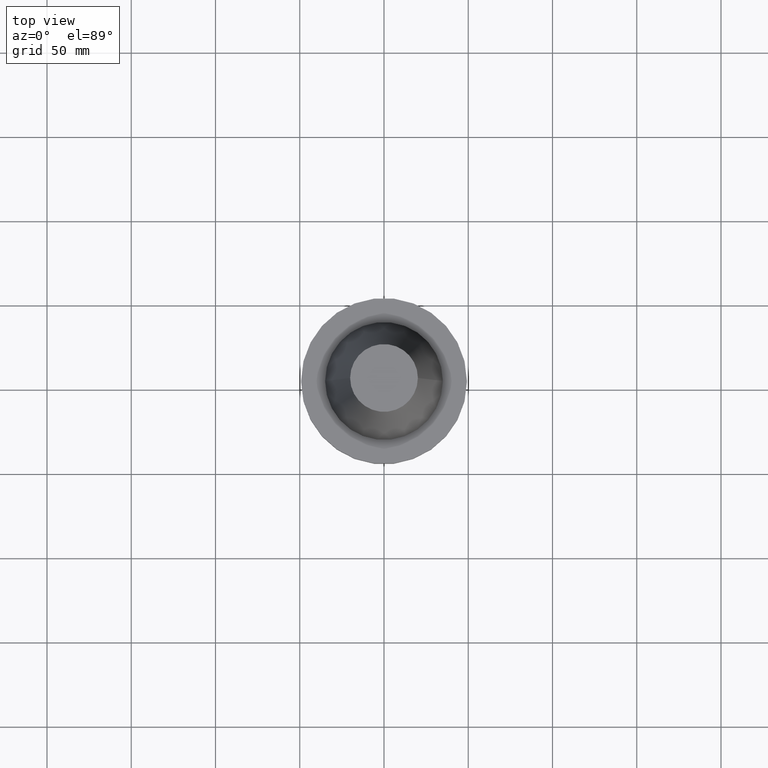
[diagram: clean part render]
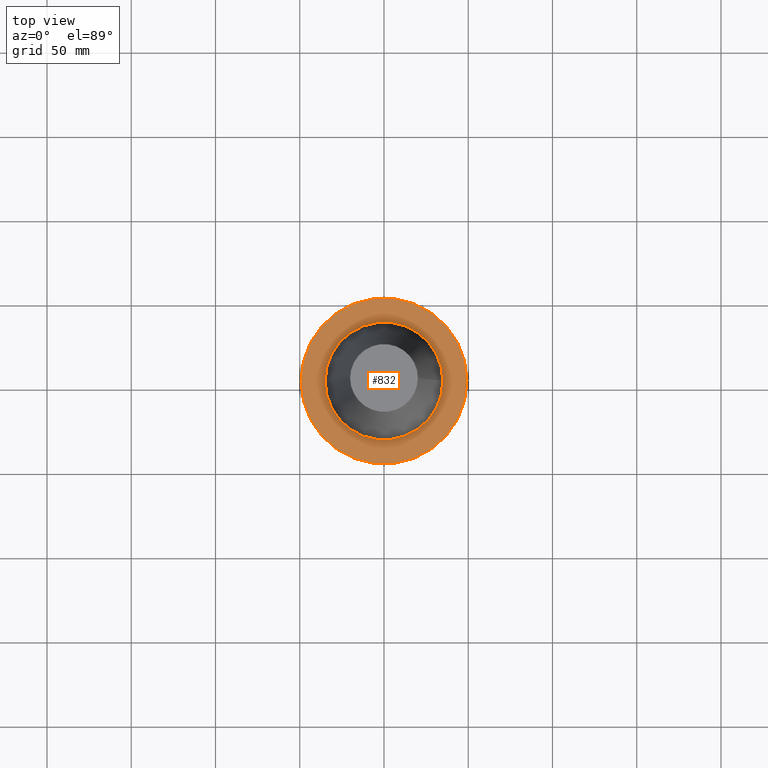
[diagram: same view with one face highlighted and labeled with its STEP entity id]
A machine part, top view. The second image highlights one B-rep face of the part: STEP entity #832.
In plain terms, the highlighted planar face has unit normal (0, 0, -1).
Its self-contained STEP definition (entity closure, byte-faithful):
#44 = DIRECTION ( 'NONE',  ( -0.000000000000000000, -0.000000000000000000, 1.000000000000000000 ) ) ;
#73 = AXIS2_PLACEMENT_3D ( 'NONE', #1038, #210, #702 ) ;
#91 = AXIS2_PLACEMENT_3D ( 'NONE', #390, #396, #736 ) ;
#113 = FACE_OUTER_BOUND ( 'NONE', #685, .T. ) ;
#128 = CARTESIAN_POINT ( 'NONE',  ( 49.21499999999999631, 0.000000000000000000, -1.499999999999987566 ) ) ;
#154 = CIRCLE ( 'NONE', #91, 34.92499999999999005 ) ;
#155 = VERTEX_POINT ( 'NONE', #610 ) ;
#192 = ORIENTED_EDGE ( 'NONE', *, *, #395, .F. ) ;
#198 = DIRECTION ( 'NONE',  ( 1.000000000000000000, 0.000000000000000000, 0.000000000000000000 ) ) ;
#204 = AXIS2_PLACEMENT_3D ( 'NONE', #955, #44, #198 ) ;
#210 = DIRECTION ( 'NONE',  ( -0.000000000000000000, -0.000000000000000000, 1.000000000000000000 ) ) ;
#230 = VERTEX_POINT ( 'NONE', #799 ) ;
#240 = EDGE_CURVE ( 'NONE', #155, #230, #334, .T. ) ;
#277 = ORIENTED_EDGE ( 'NONE', *, *, #240, .F. ) ;
#284 = DIRECTION ( 'NONE',  ( 1.000000000000000000, 0.000000000000000000, 0.000000000000000000 ) ) ;
#294 = EDGE_CURVE ( 'NONE', #982, #745, #984, .T. ) ;
#303 = DIRECTION ( 'NONE',  ( -0.000000000000000000, -0.000000000000000000, 1.000000000000000000 ) ) ;
#312 = EDGE_CURVE ( 'NONE', #745, #982, #451, .T. ) ;
#334 = CIRCLE ( 'NONE', #73, 34.92499999999999005 ) ;
#390 = CARTESIAN_POINT ( 'NONE',  ( 0.000000000000000000, 0.000000000000000000, -1.499999999999987566 ) ) ;
#395 = EDGE_CURVE ( 'NONE', #230, #155, #154, .T. ) ;
#396 = DIRECTION ( 'NONE',  ( -0.000000000000000000, -0.000000000000000000, 1.000000000000000000 ) ) ;
#433 = DIRECTION ( 'NONE',  ( 0.000000000000000000, 0.000000000000000000, -1.000000000000000000 ) ) ;
#438 = AXIS2_PLACEMENT_3D ( 'NONE', #937, #433, #761 ) ;
#451 = CIRCLE ( 'NONE', #204, 49.21499999999999631 ) ;
#509 = ORIENTED_EDGE ( 'NONE', *, *, #294, .T. ) ;
#553 = CARTESIAN_POINT ( 'NONE',  ( 0.000000000000000000, 0.000000000000000000, -1.499999999999987566 ) ) ;
#561 = EDGE_LOOP ( 'NONE', ( #192, #277 ) ) ;
#607 = PLANE ( 'NONE',  #438 ) ;
#610 = CARTESIAN_POINT ( 'NONE',  ( -34.92499999999999005, 4.277078946022130098E-15, -1.499999999999987566 ) ) ;
#685 = EDGE_LOOP ( 'NONE', ( #509, #700 ) ) ;
#694 = FACE_BOUND ( 'NONE', #561, .T. ) ;
#700 = ORIENTED_EDGE ( 'NONE', *, *, #312, .T. ) ;
#702 = DIRECTION ( 'NONE',  ( 1.000000000000000000, 0.000000000000000000, 0.000000000000000000 ) ) ;
#736 = DIRECTION ( 'NONE',  ( 1.000000000000000000, 0.000000000000000000, 0.000000000000000000 ) ) ;
#745 = VERTEX_POINT ( 'NONE', #904 ) ;
#761 = DIRECTION ( 'NONE',  ( -1.000000000000000000, 0.000000000000000000, -0.000000000000000000 ) ) ;
#799 = CARTESIAN_POINT ( 'NONE',  ( 34.92499999999999005, 0.000000000000000000, -1.499999999999987566 ) ) ;
#832 = ADVANCED_FACE ( 'NONE', ( #694, #113 ), #607, .F. ) ;
#856 = AXIS2_PLACEMENT_3D ( 'NONE', #553, #303, #284 ) ;
#904 = CARTESIAN_POINT ( 'NONE',  ( -49.21499999999999631, 6.027099222003697826E-15, -1.499999999999987566 ) ) ;
#937 = CARTESIAN_POINT ( 'NONE',  ( 0.000000000000000000, 49.21499999999999631, -1.499999999999992895 ) ) ;
#955 = CARTESIAN_POINT ( 'NONE',  ( 0.000000000000000000, 0.000000000000000000, -1.499999999999987566 ) ) ;
#982 = VERTEX_POINT ( 'NONE', #128 ) ;
#984 = CIRCLE ( 'NONE', #856, 49.21499999999999631 ) ;
#1038 = CARTESIAN_POINT ( 'NONE',  ( 0.000000000000000000, 0.000000000000000000, -1.499999999999987566 ) ) ;